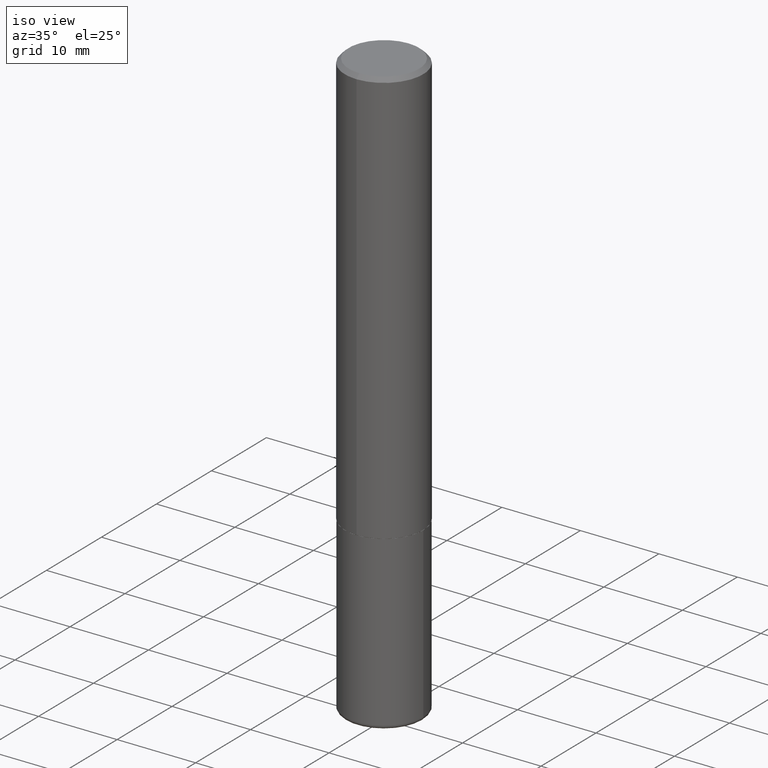
[diagram: clean part render]
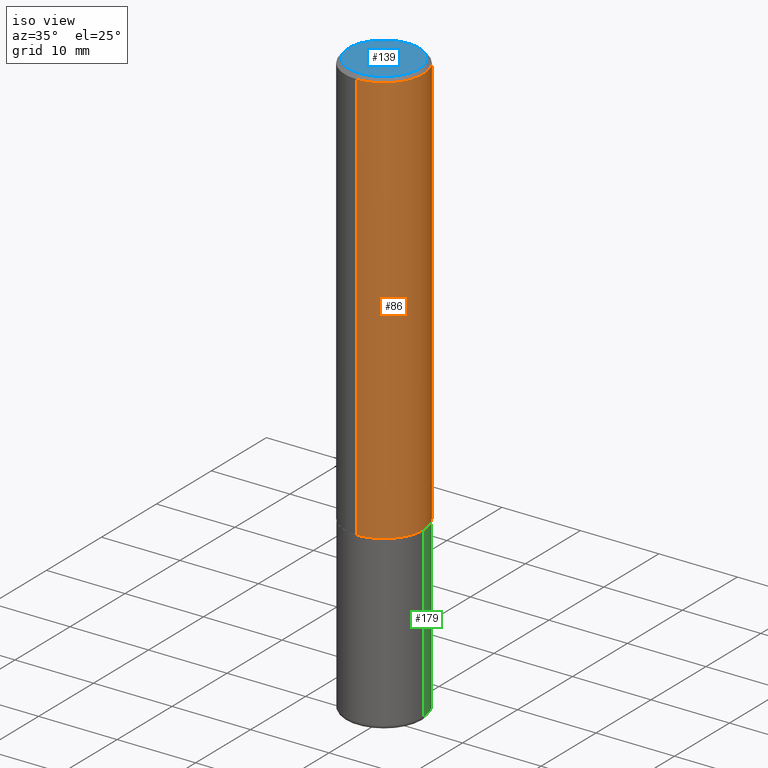
[diagram: same view with three faces highlighted in distinct colors, each labeled with its STEP entity id]
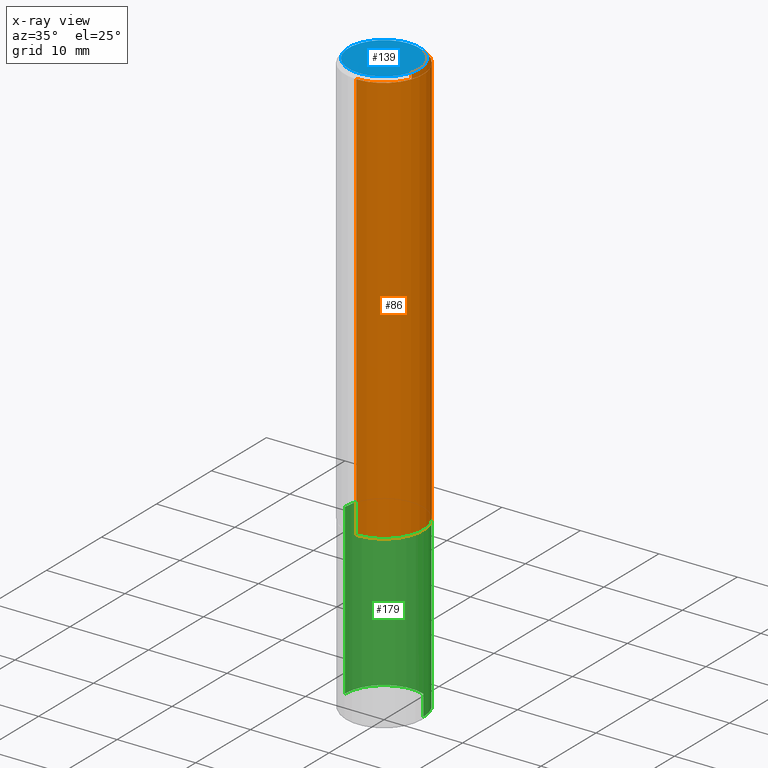
[diagram: x-ray of the same camera — body ghosted, the three highlighted faces saturated]
A machine part, iso view with three faces highlighted in distinct colors.
The next image is the same camera in x-ray (body ghosted, the three faces saturated) — at least one of them is partly hidden behind the body in this view.
Their STEP definitions:

[orange] entity #86 — the highlighted cylindrical surface (partial cylindrical patch) has radius 5 mm, axis along (-0, 0, 1).
#2 = CARTESIAN_POINT ( 'NONE',  ( -1.350489030861325429E-15, -0.1968500000000000805, -0.01999999999999935510 ) ) ;
#10 = DIRECTION ( 'NONE',  ( -2.446539280306379378E-29, 3.489948358973923236E-15, 1.000000000000000000 ) ) ;
#13 = AXIS2_PLACEMENT_3D ( 'NONE', #369, #85, #18 ) ;
#18 = DIRECTION ( 'NONE',  ( -6.982962677686265922E-15, -1.000000000000000000, 3.489948358973923631E-15 ) ) ;
#26 = AXIS2_PLACEMENT_3D ( 'NONE', #133, #397, #76 ) ;
#31 = ORIENTED_EDGE ( 'NONE', *, *, #66, .F. ) ;
#66 = EDGE_CURVE ( 'NONE', #135, #358, #305, .T. ) ;
#76 = DIRECTION ( 'NONE',  ( -6.982962677686265922E-15, -1.000000000000000000, 4.163344669033669323E-15 ) ) ;
#78 = ORIENTED_EDGE ( 'NONE', *, *, #408, .T. ) ;
#85 = DIRECTION ( 'NONE',  ( -2.446539280306379098E-29, 3.489948358973923236E-15, 1.000000000000000000 ) ) ;
#86 = ADVANCED_FACE ( 'NONE', ( #145 ), #313, .T. ) ;
#89 = DIRECTION ( 'NONE',  ( -6.982962677686265133E-15, -1.000000000000000000, 3.491137977679279424E-15 ) ) ;
#93 = DIRECTION ( 'NONE',  ( -2.446539280306379098E-29, 3.489948358973923236E-15, 1.000000000000000000 ) ) ;
#95 = ORIENTED_EDGE ( 'NONE', *, *, #129, .F. ) ;
#98 = ORIENTED_EDGE ( 'NONE', *, *, #294, .T. ) ;
#105 = VECTOR ( 'NONE', #10, 39.37007874015748143 ) ;
#109 = CARTESIAN_POINT ( 'NONE',  ( 1.398703375343784412E-15, 0.1968499999999930583, -2.085700000000000554 ) ) ;
#129 = EDGE_CURVE ( 'NONE', #358, #296, #274, .T. ) ;
#133 = CARTESIAN_POINT ( 'NONE',  ( 5.102746976935014410E-29, -7.278985292311911140E-15, -2.085699999999999665 ) ) ;
#135 = VERTEX_POINT ( 'NONE', #220 ) ;
#145 = FACE_OUTER_BOUND ( 'NONE', #377, .T. ) ;
#156 = VECTOR ( 'NONE', #250, 39.37007874015748143 ) ;
#192 = CARTESIAN_POINT ( 'NONE',  ( 1.374596203102542003E-15, 0.1968499999999999417, -0.02000000000000072900 ) ) ;
#212 = CARTESIAN_POINT ( 'NONE',  ( -1.374596203102542397E-15, -0.1968500000000001360, 6.869963344640173229E-16 ) ) ;
#220 = CARTESIAN_POINT ( 'NONE',  ( -1.374596203102492502E-15, -0.1968500000000075467, -2.085699999999999221 ) ) ;
#250 = DIRECTION ( 'NONE',  ( -2.446539280306379378E-29, 3.489948358973923236E-15, 1.000000000000000000 ) ) ;
#251 = AXIS2_PLACEMENT_3D ( 'NONE', #257, #93, #89 ) ;
#257 = CARTESIAN_POINT ( 'NONE',  ( 4.893078560612768951E-31, -6.979896717947859982E-17, -0.02000000000000004205 ) ) ;
#267 = CIRCLE ( 'NONE', #26, 0.1968500000000002748 ) ;
#274 = CIRCLE ( 'NONE', #251, 0.1968500000000000250 ) ;
#287 = LINE ( 'NONE', #409, #156 ) ;
#294 = EDGE_CURVE ( 'NONE', #329, #296, #287, .T. ) ;
#296 = VERTEX_POINT ( 'NONE', #192 ) ;
#305 = LINE ( 'NONE', #212, #105 ) ;
#313 = CYLINDRICAL_SURFACE ( 'NONE', #13, 0.1968500000000001360 ) ;
#329 = VERTEX_POINT ( 'NONE', #109 ) ;
#358 = VERTEX_POINT ( 'NONE', #2 ) ;
#369 = CARTESIAN_POINT ( 'NONE',  ( 0.000000000000000000, 0.000000000000000000, 0.000000000000000000 ) ) ;
#377 = EDGE_LOOP ( 'NONE', ( #78, #98, #95, #31 ) ) ;
#397 = DIRECTION ( 'NONE',  ( -2.446539280306379098E-29, 3.489948358973923236E-15, 1.000000000000000000 ) ) ;
#408 = EDGE_CURVE ( 'NONE', #135, #329, #267, .T. ) ;
#409 = CARTESIAN_POINT ( 'NONE',  ( 1.398703375343757985E-15, 0.1968500000000001360, -6.869963344640173229E-16 ) ) ;

[blue] entity #139 — the highlighted planar face has unit normal (0, -0, -1).
#19 = AXIS2_PLACEMENT_3D ( 'NONE', #196, #159, #123 ) ;
#62 = CIRCLE ( 'NONE', #150, 0.1768499999999997019 ) ;
#74 = DIRECTION ( 'NONE',  ( -6.982962677686265922E-15, -1.000000000000000000, 3.489948358973923236E-15 ) ) ;
#104 = DIRECTION ( 'NONE',  ( -6.982962677686265922E-15, -1.000000000000000000, 3.489948358973923236E-15 ) ) ;
#123 = DIRECTION ( 'NONE',  ( 6.982962677686265922E-15, 1.000000000000000000, -3.489948358973923236E-15 ) ) ;
#139 = ADVANCED_FACE ( 'NONE', ( #158 ), #216, .F. ) ;
#150 = AXIS2_PLACEMENT_3D ( 'NONE', #367, #170, #74 ) ;
#158 = FACE_OUTER_BOUND ( 'NONE', #291, .T. ) ;
#159 = DIRECTION ( 'NONE',  ( 2.446539280306378818E-29, -3.489948358973923236E-15, -1.000000000000000000 ) ) ;
#170 = DIRECTION ( 'NONE',  ( -2.446539280306379098E-29, 3.489948358973923236E-15, 1.000000000000000000 ) ) ;
#175 = CARTESIAN_POINT ( 'NONE',  ( 1.304766576325678113E-15, 0.1768499999999997019, -3.144040879772800215E-16 ) ) ;
#196 = CARTESIAN_POINT ( 'NONE',  ( 1.234936949548814026E-15, 0.1768499999999997019, -4.658007276309087683E-16 ) ) ;
#214 = ORIENTED_EDGE ( 'NONE', *, *, #302, .T. ) ;
#216 = PLANE ( 'NONE',  #19 ) ;
#269 = ORIENTED_EDGE ( 'NONE', *, *, #368, .T. ) ;
#291 = EDGE_LOOP ( 'NONE', ( #269, #214 ) ) ;
#302 = EDGE_CURVE ( 'NONE', #360, #390, #375, .T. ) ;
#303 = AXIS2_PLACEMENT_3D ( 'NONE', #317, #304, #104 ) ;
#304 = DIRECTION ( 'NONE',  ( -2.446539280306379098E-29, 3.489948358973923236E-15, 1.000000000000000000 ) ) ;
#317 = CARTESIAN_POINT ( 'NONE',  ( -7.407956516379856958E-45, 1.056732908226695147E-30, 3.027932793072572471E-16 ) ) ;
#360 = VERTEX_POINT ( 'NONE', #364 ) ;
#364 = CARTESIAN_POINT ( 'NONE',  ( -1.281884050883609506E-15, -0.1768499999999997019, 9.199906465917945650E-16 ) ) ;
#367 = CARTESIAN_POINT ( 'NONE',  ( -7.407956516379856958E-45, 1.056732908226695147E-30, 3.027932793072572471E-16 ) ) ;
#368 = EDGE_CURVE ( 'NONE', #390, #360, #62, .T. ) ;
#375 = CIRCLE ( 'NONE', #303, 0.1768499999999997019 ) ;
#390 = VERTEX_POINT ( 'NONE', #175 ) ;

[green] entity #179 — the highlighted cylindrical surface (partial cylindrical patch) has radius 5 mm, axis along (-0, 0, 1).
#4 = VERTEX_POINT ( 'NONE', #365 ) ;
#21 = VERTEX_POINT ( 'NONE', #232 ) ;
#22 = DIRECTION ( 'NONE',  ( 1.000000000000000000, -6.982962677686269866E-15, 0.000000000000000000 ) ) ;
#39 = LINE ( 'NONE', #247, #155 ) ;
#55 = CARTESIAN_POINT ( 'NONE',  ( 0.1968499999999999417, -1.161546011806337053E-14, -2.933100000000000041 ) ) ;
#57 = FACE_OUTER_BOUND ( 'NONE', #338, .T. ) ;
#73 = VERTEX_POINT ( 'NONE', #88 ) ;
#88 = CARTESIAN_POINT ( 'NONE',  ( 0.1968500000000000250, -8.660270312866532536E-15, -2.086699999999999999 ) ) ;
#90 = CIRCLE ( 'NONE', #309, 0.1968500000000000250 ) ;
#94 = DIRECTION ( 'NONE',  ( -2.445468806185136877E-29, 3.491481338843145188E-15, 1.000000000000000000 ) ) ;
#97 = EDGE_CURVE ( 'NONE', #164, #73, #39, .T. ) ;
#102 = CARTESIAN_POINT ( 'NONE',  ( 5.102959757866523939E-29, -7.285674109763990928E-15, -2.086699999999999999 ) ) ;
#122 = CARTESIAN_POINT ( 'NONE',  ( 7.172804555421624566E-29, -1.024086391496083050E-14, -2.933100000000000041 ) ) ;
#128 = ORIENTED_EDGE ( 'NONE', *, *, #173, .T. ) ;
#144 = DIRECTION ( 'NONE',  ( 1.000000000000000000, -6.982962677686267499E-15, 0.000000000000000000 ) ) ;
#155 = VECTOR ( 'NONE', #346, 39.37007874015748143 ) ;
#164 = VERTEX_POINT ( 'NONE', #55 ) ;
#165 = CARTESIAN_POINT ( 'NONE',  ( 0.000000000000000000, 0.000000000000000000, 0.000000000000000000 ) ) ;
#173 = EDGE_CURVE ( 'NONE', #21, #4, #288, .T. ) ;
#174 = ORIENTED_EDGE ( 'NONE', *, *, #281, .T. ) ;
#179 = ADVANCED_FACE ( 'NONE', ( #57 ), #410, .T. ) ;
#228 = DIRECTION ( 'NONE',  ( -2.445468806185136597E-29, 3.491481338843145583E-15, 1.000000000000000000 ) ) ;
#230 = AXIS2_PLACEMENT_3D ( 'NONE', #165, #290, #322 ) ;
#232 = CARTESIAN_POINT ( 'NONE',  ( -0.1968499999999999417, -8.842160539617071922E-15, -2.933100000000000041 ) ) ;
#247 = CARTESIAN_POINT ( 'NONE',  ( 0.1968499999999999694, -1.374596203102541411E-15, 9.598753983154298056E-30 ) ) ;
#252 = CIRCLE ( 'NONE', #320, 0.1968499999999999694 ) ;
#281 = EDGE_CURVE ( 'NONE', #164, #21, #252, .T. ) ;
#288 = LINE ( 'NONE', #350, #393 ) ;
#290 = DIRECTION ( 'NONE',  ( -2.445468806185136597E-29, 3.491481338843145583E-15, 1.000000000000000000 ) ) ;
#309 = AXIS2_PLACEMENT_3D ( 'NONE', #102, #228, #144 ) ;
#320 = AXIS2_PLACEMENT_3D ( 'NONE', #122, #378, #22 ) ;
#321 = ORIENTED_EDGE ( 'NONE', *, *, #324, .F. ) ;
#322 = DIRECTION ( 'NONE',  ( 1.000000000000000000, -6.982962677686266711E-15, 4.876176775795935793E-29 ) ) ;
#324 = EDGE_CURVE ( 'NONE', #73, #4, #90, .T. ) ;
#338 = EDGE_LOOP ( 'NONE', ( #174, #128, #321, #407 ) ) ;
#346 = DIRECTION ( 'NONE',  ( -2.445468806185136877E-29, 3.491481338843145188E-15, 1.000000000000000000 ) ) ;
#350 = CARTESIAN_POINT ( 'NONE',  ( -0.1968499999999999694, 1.398703375343756999E-15, -9.682923725166782276E-30 ) ) ;
#365 = CARTESIAN_POINT ( 'NONE',  ( -0.1968500000000000250, -7.364565637018652926E-15, -2.086699999999999999 ) ) ;
#378 = DIRECTION ( 'NONE',  ( -2.445468806185136597E-29, 3.491481338843145583E-15, 1.000000000000000000 ) ) ;
#393 = VECTOR ( 'NONE', #94, 39.37007874015748143 ) ;
#407 = ORIENTED_EDGE ( 'NONE', *, *, #97, .F. ) ;
#410 = CYLINDRICAL_SURFACE ( 'NONE', #230, 0.1968499999999999694 ) ;